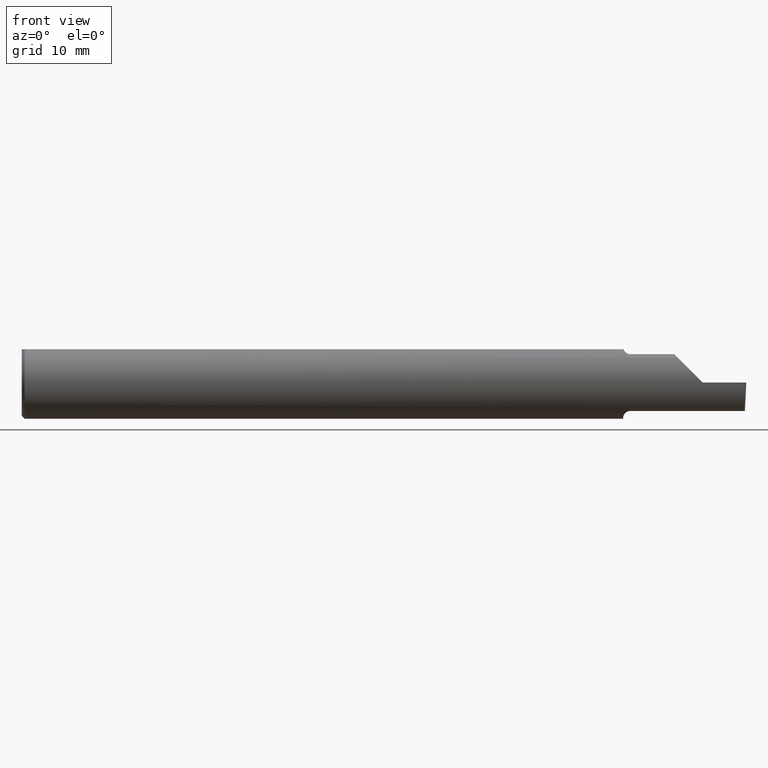
[diagram: clean part render]
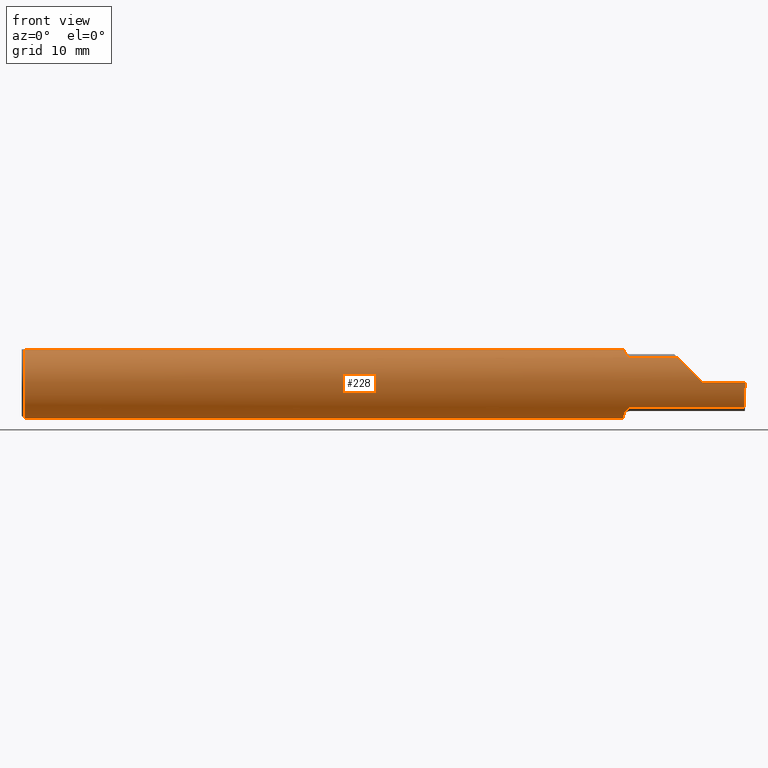
[diagram: same view with one face highlighted and labeled with its STEP entity id]
A machine part, front view. The second image highlights one B-rep face of the part: STEP entity #228.
In plain terms, the highlighted cylindrical surface (edge-blend (fillet) strip) has radius 3.175 mm, axis along (-1, -0, -0).
Its self-contained STEP definition (entity closure, byte-faithful):
#35 = ORIENTED_EDGE ( 'NONE', *, *, #556, .F. ) ;
#36 = CARTESIAN_POINT ( 'NONE',  ( 2.091446811421614704, -0.08721672169480992887, 0.08955973280240364653 ) ) ;
#47 = LINE ( 'NONE', #796, #509 ) ;
#50 = CARTESIAN_POINT ( 'NONE',  ( 2.097250989814109179, -0.09042045454545435956, -0.08630840862739519448 ) ) ;
#57 = CARTESIAN_POINT ( 'NONE',  ( 0.01000000000000042348, 0.04898979485566374442, 0.1149999999999999217 ) ) ;
#68 =( BOUNDED_CURVE ( )  B_SPLINE_CURVE ( 3, ( #712, #215, #516, #716 ),
 .UNSPECIFIED., .F., .T. ) 
 B_SPLINE_CURVE_WITH_KNOTS ( ( 4, 4 ),
 ( 0.3451966888489940710, 1.107331509589511098 ),
 .UNSPECIFIED. ) 
 CURVE ( )  GEOMETRIC_REPRESENTATION_ITEM ( )  RATIONAL_B_SPLINE_CURVE ( ( 1.000000000000000000, 0.9521787881681383903, 0.9521787881681383903, 1.000000000000000000 ) ) 
 REPRESENTATION_ITEM ( '' )  );
#100 = CARTESIAN_POINT ( 'NONE',  ( 2.085996102358258053, -0.08116363444210958344, 0.09515685373890780951 ) ) ;
#104 = EDGE_CURVE ( 'NONE', #360, #312, #559, .T. ) ;
#111 = VECTOR ( 'NONE', #611, 39.37007874015748143 ) ;
#115 = CARTESIAN_POINT ( 'NONE',  ( 2.075000000000000178, 0.000000000000000000, 0.000000000000000000 ) ) ;
#117 = CARTESIAN_POINT ( 'NONE',  ( 2.078809610961340315, -0.06315583524588902486, -0.1079992965090798424 ) ) ;
#118 = EDGE_CURVE ( 'NONE', #541, #571, #775, .T. ) ;
#131 = DIRECTION ( 'NONE',  ( 1.000000000000000000, 0.000000000000000000, 0.000000000000000000 ) ) ;
#142 = DIRECTION ( 'NONE',  ( -1.000000000000000000, -0.000000000000000000, -0.000000000000000000 ) ) ;
#154 = DIRECTION ( 'NONE',  ( 1.000000000000000000, 0.000000000000000000, 0.000000000000000000 ) ) ;
#168 = VERTEX_POINT ( 'NONE', #700 ) ;
#178 =( BOUNDED_CURVE ( )  B_SPLINE_CURVE ( 3, ( #685, #195, #491, #254 ),
 .UNSPECIFIED., .F., .F. ) 
 B_SPLINE_CURVE_WITH_KNOTS ( ( 4, 4 ),
 ( 4.712388980384689674, 5.474523801125206646 ),
 .UNSPECIFIED. ) 
 CURVE ( )  GEOMETRIC_REPRESENTATION_ITEM ( )  RATIONAL_B_SPLINE_CURVE ( ( 1.000000000000000000, 0.9521787881681383903, 0.9521787881681383903, 1.000000000000000000 ) ) 
 REPRESENTATION_ITEM ( '' )  );
#180 = CARTESIAN_POINT ( 'NONE',  ( 2.083239374200247518, -0.07597265459956462075, -0.09939534496909263606 ) ) ;
#187 = CYLINDRICAL_SURFACE ( 'NONE', #266, 0.1250000000000000000 ) ;
#193 = EDGE_LOOP ( 'NONE', ( #492, #738, #576, #505, #394, #695, #35, #336, #256, #484, #615, #619, #271 ) ) ;
#194 = CARTESIAN_POINT ( 'NONE',  ( 2.085190181894029049, -0.07991573988362404846, -0.09622915934337322730 ) ) ;
#195 = CARTESIAN_POINT ( 'NONE',  ( 2.317450832343515899, -0.1250000000000000000, 0.03254916765648416949 ) ) ;
#197 = LINE ( 'NONE', #460, #393 ) ;
#203 = CARTESIAN_POINT ( 'NONE',  ( 2.075730677800976753, -0.04400000000000003908, -0.1169999999999999929 ) ) ;
#205 = CARTESIAN_POINT ( 'NONE',  ( 2.493502479154699358, -0.09042045454545437344, -0.08630840862739515285 ) ) ;
#209 = VERTEX_POINT ( 'NONE', #307 ) ;
#210 = CARTESIAN_POINT ( 'NONE',  ( 2.075234743326752174, -0.03866586649758528560, -0.1190059989239850985 ) ) ;
#212 = AXIS2_PLACEMENT_3D ( 'NONE', #777, #154, #734 ) ;
#215 = CARTESIAN_POINT ( 'NONE',  ( 2.493932522392288131, -0.1128945894460738203, -0.06276352435079114722 ) ) ;
#221 = VERTEX_POINT ( 'NONE', #690 ) ;
#227 = CARTESIAN_POINT ( 'NONE',  ( 0.01000000000000042348, -0.04898979485566374442, 0.1149999999999999217 ) ) ;
#228 = ADVANCED_FACE ( 'NONE', ( #304 ), #187, .T. ) ;
#233 = DIRECTION ( 'NONE',  ( -1.000000000000000000, -0.000000000000000000, -0.000000000000000000 ) ) ;
#243 = CARTESIAN_POINT ( 'NONE',  ( 2.076893175330811303, -0.05388688644707111119, -0.1129101901561701121 ) ) ;
#247 = CARTESIAN_POINT ( 'NONE',  ( 2.075730677800976753, -0.04400000000000003908, -0.1169999999999999929 ) ) ;
#249 = CARTESIAN_POINT ( 'NONE',  ( 2.075000000000000178, 0.04898979485566374442, 0.1149999999999999217 ) ) ;
#254 = CARTESIAN_POINT ( 'NONE',  ( 2.263691591372603895, -0.09042045454545441507, 0.08630840862739512509 ) ) ;
#256 = ORIENTED_EDGE ( 'NONE', *, *, #321, .T. ) ;
#258 = CARTESIAN_POINT ( 'NONE',  ( 0.000000000000000000, 0.000000000000000000, 0.000000000000000000 ) ) ;
#261 = DIRECTION ( 'NONE',  ( 0.000000000000000000, 0.000000000000000000, 1.000000000000000000 ) ) ;
#266 = AXIS2_PLACEMENT_3D ( 'NONE', #258, #553, #261 ) ;
#271 = ORIENTED_EDGE ( 'NONE', *, *, #632, .F. ) ;
#274 = EDGE_CURVE ( 'NONE', #221, #209, #178, .T. ) ;
#293 = CARTESIAN_POINT ( 'NONE',  ( 2.100000000000000089, -0.09042045454545434569, 0.08630840862739518060 ) ) ;
#304 = FACE_OUTER_BOUND ( 'NONE', #193, .T. ) ;
#307 = CARTESIAN_POINT ( 'NONE',  ( 2.263691591372603895, -0.09042045454545441507, 0.08630840862739512509 ) ) ;
#312 = VERTEX_POINT ( 'NONE', #249 ) ;
#314 = AXIS2_PLACEMENT_3D ( 'NONE', #115, #403, #365 ) ;
#317 = B_SPLINE_CURVE_WITH_KNOTS ( 'NONE', 3,
 ( #203, #210, #388, #514 ),
 .UNSPECIFIED., .F., .F.,
 ( 4, 4 ),
 ( 0.001645996930207816204, 0.002084692492981597353 ),
 .UNSPECIFIED. ) ;
#318 = LINE ( 'NONE', #552, #111 ) ;
#321 = EDGE_CURVE ( 'NONE', #571, #625, #788, .T. ) ;
#336 = ORIENTED_EDGE ( 'NONE', *, *, #118, .T. ) ;
#341 = EDGE_CURVE ( 'NONE', #404, #446, #68, .T. ) ;
#346 = CARTESIAN_POINT ( 'NONE',  ( 2.095169762358927379, -0.08954173371313513263, 0.08723520050113869884 ) ) ;
#353 = CARTESIAN_POINT ( 'NONE',  ( 2.079267307214532678, -0.06631395538259703126, 0.1063681193386738499 ) ) ;
#357 = CARTESIAN_POINT ( 'NONE',  ( 2.100000000000000089, -0.09042045454545434569, 0.08630840862739518060 ) ) ;
#360 = VERTEX_POINT ( 'NONE', #781 ) ;
#365 = DIRECTION ( 'NONE',  ( 0.000000000000000000, 0.000000000000000000, -1.000000000000000000 ) ) ;
#384 = VERTEX_POINT ( 'NONE', #575 ) ;
#388 = CARTESIAN_POINT ( 'NONE',  ( 2.075000000000000178, -0.03321131449419133241, -0.1206428032506770415 ) ) ;
#389 = CARTESIAN_POINT ( 'NONE',  ( 0.01000000000000042348, 0.000000000000000000, 0.000000000000000000 ) ) ;
#392 = DIRECTION ( 'NONE',  ( 1.000000000000000000, 0.000000000000000000, 0.000000000000000000 ) ) ;
#393 = VECTOR ( 'NONE', #577, 39.37007874015748143 ) ;
#394 = ORIENTED_EDGE ( 'NONE', *, *, #682, .F. ) ;
#403 = DIRECTION ( 'NONE',  ( 1.000000000000000000, 0.000000000000000000, 0.000000000000000000 ) ) ;
#404 = VERTEX_POINT ( 'NONE', #205 ) ;
#407 = CARTESIAN_POINT ( 'NONE',  ( 2.076278290187155484, -0.04898979485567048209, 0.1149999999999999217 ) ) ;
#408 = VECTOR ( 'NONE', #131, 39.37007874015748143 ) ;
#413 = CARTESIAN_POINT ( 'NONE',  ( 2.089945076695560289, -0.08578123596784995031, 0.09094459933477699876 ) ) ;
#417 = CARTESIAN_POINT ( 'NONE',  ( 2.084055883886254179, -0.07758562614456451789, 0.09811804109484031922 ) ) ;
#427 = CARTESIAN_POINT ( 'NONE',  ( 2.075730677800976753, -0.04400000000000003908, -0.1169999999999999929 ) ) ;
#446 = VERTEX_POINT ( 'NONE', #776 ) ;
#451 = LINE ( 'NONE', #506, #548 ) ;
#455 = VERTEX_POINT ( 'NONE', #293 ) ;
#460 = CARTESIAN_POINT ( 'NONE',  ( 2.287237909999999985, -0.09042045454545437344, 0.08630840862739515285 ) ) ;
#462 = B_SPLINE_CURVE_WITH_KNOTS ( 'NONE', 3,
 ( #407, #662, #353, #417, #100, #413, #36, #346, #599, #357 ),
 .UNSPECIFIED., .F., .F.,
 ( 4, 2, 2, 2, 4 ),
 ( 5.067393987362344038E-07, 0.0007430328995925329768, 0.001114295979689431315, 0.001299927519737886176, 0.001485559059786341254 ),
 .UNSPECIFIED. ) ;
#484 = ORIENTED_EDGE ( 'NONE', *, *, #628, .F. ) ;
#489 = LINE ( 'NONE', #739, #408 ) ;
#490 = EDGE_CURVE ( 'NONE', #404, #168, #47, .T. ) ;
#491 = CARTESIAN_POINT ( 'NONE',  ( 2.287236475649208067, -0.1128945894460738203, 0.06276352435079109171 ) ) ;
#492 = ORIENTED_EDGE ( 'NONE', *, *, #490, .F. ) ;
#500 = CARTESIAN_POINT ( 'NONE',  ( 2.100000000000000089, -0.09042045454545434569, -0.08630840862739518060 ) ) ;
#505 = ORIENTED_EDGE ( 'NONE', *, *, #274, .T. ) ;
#506 = CARTESIAN_POINT ( 'NONE',  ( 3.749399456654637998E-32, -0.1249999999999999861, 3.061616997868380183E-16 ) ) ;
#509 = VECTOR ( 'NONE', #233, 39.37007874015748143 ) ;
#514 = CARTESIAN_POINT ( 'NONE',  ( 2.075000000000000178, -0.02763636363636362211, -0.1219066503721543265 ) ) ;
#516 = CARTESIAN_POINT ( 'NONE',  ( 2.494776490973177552, -0.1250000000000000278, -0.03254916765648419030 ) ) ;
#531 = EDGE_CURVE ( 'NONE', #384, #455, #462, .T. ) ;
#541 = VERTEX_POINT ( 'NONE', #227 ) ;
#548 = VECTOR ( 'NONE', #142, 39.37007874015748143 ) ;
#549 = CARTESIAN_POINT ( 'NONE',  ( 0.01000000000000042348, 0.000000000000000000, -0.1250000000000000000 ) ) ;
#552 = CARTESIAN_POINT ( 'NONE',  ( 0.000000000000000000, 0.04898979485566374442, 0.1149999999999999217 ) ) ;
#553 = DIRECTION ( 'NONE',  ( -1.000000000000000000, -0.000000000000000000, -0.000000000000000000 ) ) ;
#556 = EDGE_CURVE ( 'NONE', #541, #384, #489, .T. ) ;
#559 = CIRCLE ( 'NONE', #314, 0.1250000000000000000 ) ;
#566 = VERTEX_POINT ( 'NONE', #427 ) ;
#571 = VERTEX_POINT ( 'NONE', #549 ) ;
#575 = CARTESIAN_POINT ( 'NONE',  ( 2.076278290187155484, -0.04898979485567048209, 0.1149999999999999217 ) ) ;
#576 = ORIENTED_EDGE ( 'NONE', *, *, #811, .T. ) ;
#577 = DIRECTION ( 'NONE',  ( 1.000000000000000000, 0.000000000000000000, 0.000000000000000000 ) ) ;
#581 = DIRECTION ( 'NONE',  ( 0.000000000000000000, 0.000000000000000000, -1.000000000000000000 ) ) ;
#599 = CARTESIAN_POINT ( 'NONE',  ( 2.097488493957837541, -0.09042045454585202757, 0.08630840862697870819 ) ) ;
#601 = AXIS2_PLACEMENT_3D ( 'NONE', #389, #392, #581 ) ;
#611 = DIRECTION ( 'NONE',  ( -1.000000000000000000, -0.000000000000000000, -0.000000000000000000 ) ) ;
#615 = ORIENTED_EDGE ( 'NONE', *, *, #104, .F. ) ;
#619 = ORIENTED_EDGE ( 'NONE', *, *, #687, .F. ) ;
#625 = VERTEX_POINT ( 'NONE', #57 ) ;
#626 = CARTESIAN_POINT ( 'NONE',  ( 2.094768270659623788, -0.08937924045984939336, -0.08740614068309870976 ) ) ;
#628 = EDGE_CURVE ( 'NONE', #312, #625, #318, .T. ) ;
#632 = EDGE_CURVE ( 'NONE', #168, #566, #646, .T. ) ;
#646 = B_SPLINE_CURVE_WITH_KNOTS ( 'NONE', 3,
 ( #500, #50, #626, #757, #747, #194, #180, #675, #117, #243, #810, #247 ),
 .UNSPECIFIED., .F., .F.,
 ( 4, 2, 2, 2, 2, 4 ),
 ( 1.964009442425878223E-07, 0.0002059214671021932918, 0.0004116465332601439912, 0.0008230966655760347649, 0.001234546797891925268, 0.001645996930207816204 ),
 .UNSPECIFIED. ) ;
#662 = CARTESIAN_POINT ( 'NONE',  ( 2.077426556614195174, -0.05801934803234089916, 0.1111534264542279604 ) ) ;
#675 = CARTESIAN_POINT ( 'NONE',  ( 2.080023755285531184, -0.06757875350159907313, -0.1052824340695055344 ) ) ;
#682 = EDGE_CURVE ( 'NONE', #455, #209, #197, .T. ) ;
#685 = CARTESIAN_POINT ( 'NONE',  ( 2.350000000000000089, -0.1250000000000000278, 1.836970198721028825E-17 ) ) ;
#687 = EDGE_CURVE ( 'NONE', #566, #360, #317, .T. ) ;
#690 = CARTESIAN_POINT ( 'NONE',  ( 2.350000000000000089, -0.1250000000000000278, 1.836970198721028825E-17 ) ) ;
#695 = ORIENTED_EDGE ( 'NONE', *, *, #531, .F. ) ;
#700 = CARTESIAN_POINT ( 'NONE',  ( 2.100000000000000089, -0.09042045454545434569, -0.08630840862739518060 ) ) ;
#712 = CARTESIAN_POINT ( 'NONE',  ( 2.493502479154699358, -0.09042045454545437344, -0.08630840862739515285 ) ) ;
#716 = CARTESIAN_POINT ( 'NONE',  ( 2.495913306096507522, -0.1250000000000000000, 0.000000000000000000 ) ) ;
#734 = DIRECTION ( 'NONE',  ( 0.000000000000000000, 0.000000000000000000, -1.000000000000000000 ) ) ;
#738 = ORIENTED_EDGE ( 'NONE', *, *, #341, .T. ) ;
#739 = CARTESIAN_POINT ( 'NONE',  ( 0.000000000000000000, -0.04898979485566374442, 0.1149999999999999217 ) ) ;
#747 = CARTESIAN_POINT ( 'NONE',  ( 2.089282510427138195, -0.08510692115743005715, -0.09158169095606863430 ) ) ;
#757 = CARTESIAN_POINT ( 'NONE',  ( 2.090850385411617385, -0.08673035960621020002, -0.09003514189954212044 ) ) ;
#775 = CIRCLE ( 'NONE', #212, 0.1250000000000000000 ) ;
#776 = CARTESIAN_POINT ( 'NONE',  ( 2.495913306096507522, -0.1250000000000000000, 0.000000000000000000 ) ) ;
#777 = CARTESIAN_POINT ( 'NONE',  ( 0.01000000000000042348, 0.000000000000000000, 0.000000000000000000 ) ) ;
#781 = CARTESIAN_POINT ( 'NONE',  ( 2.075000000000000178, -0.02763636363636362211, -0.1219066503721543265 ) ) ;
#788 = CIRCLE ( 'NONE', #601, 0.1250000000000000000 ) ;
#796 = CARTESIAN_POINT ( 'NONE',  ( 2.287237909999999985, -0.09042045454545437344, -0.08630840862739515285 ) ) ;
#810 = CARTESIAN_POINT ( 'NONE',  ( 2.076195811990450668, -0.04900285419228612299, -0.1151185847482000674 ) ) ;
#811 = EDGE_CURVE ( 'NONE', #446, #221, #451, .T. ) ;